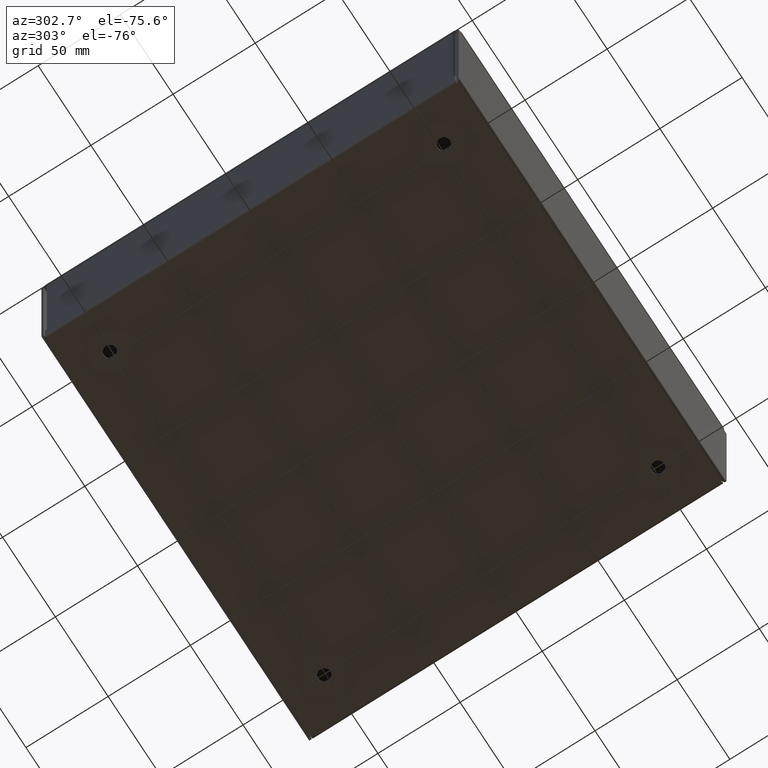
[diagram: clean part render]
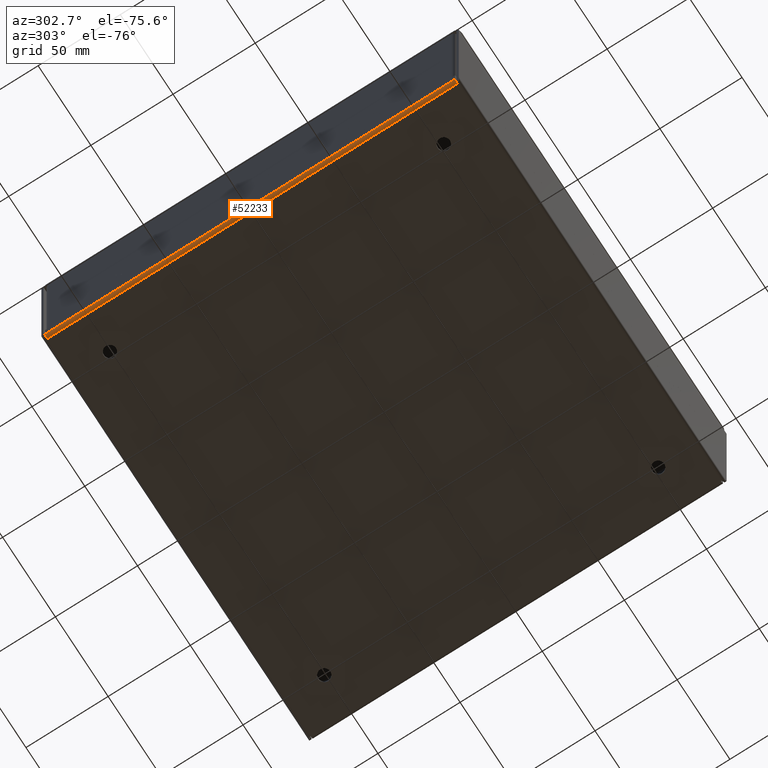
[diagram: same view with one face highlighted and labeled with its STEP entity id]
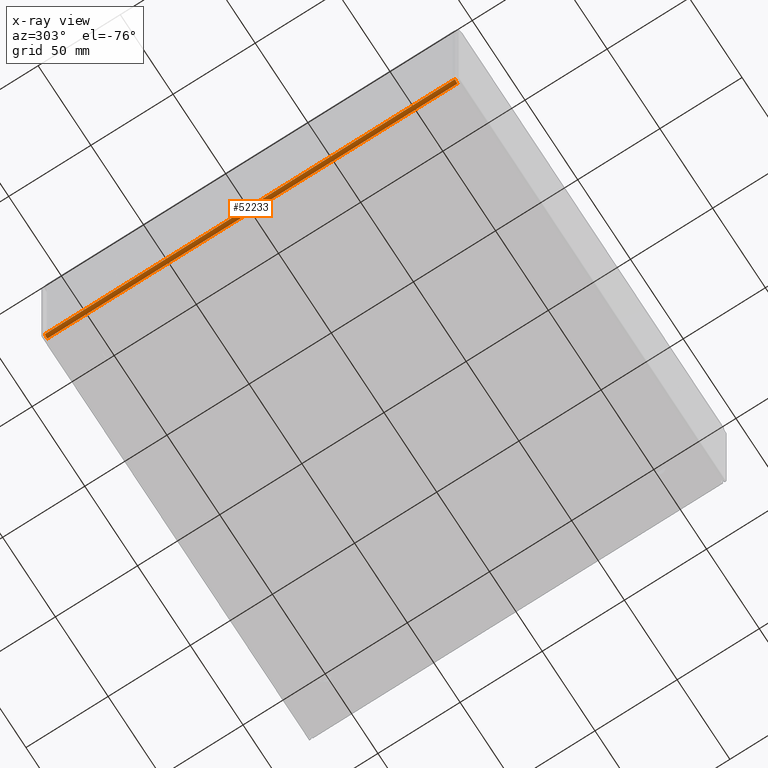
[diagram: x-ray of the same camera — body ghosted, the highlighted face saturated]
A machine part, auxiliary view. The second image highlights one B-rep face of the part: STEP entity #52233.
The next image is the same camera in x-ray: the body ghosted, the highlighted face saturated — about 0% of this face is hidden behind the body in this view.
In plain terms, the highlighted cylindrical surface (edge-blend (fillet) strip) has radius 2.1844 mm, axis along (-0, 1, 0).
Its self-contained STEP definition (entity closure, byte-faithful):
#6798=FACE_OUTER_BOUND('',#9720,.T.);
#9720=EDGE_LOOP('',(#39034,#39035,#39036,#39037));
#13265=LINE('',#71396,#18770);
#13309=LINE('',#71938,#18814);
#18770=VECTOR('',#60185,0.393700787401575);
#18814=VECTOR('',#60351,0.393700787401575);
#23688=CIRCLE('',#55575,0.086);
#23703=CIRCLE('',#55620,0.086);
#24824=VERTEX_POINT('',#71393);
#24825=VERTEX_POINT('',#71395);
#24827=VERTEX_POINT('',#71416);
#24847=VERTEX_POINT('',#71516);
#30232=EDGE_CURVE('',#24824,#24825,#13265,.T.);
#30244=EDGE_CURVE('',#24827,#24824,#23688,.T.);
#30293=EDGE_CURVE('',#24847,#24825,#23703,.T.);
#30306=EDGE_CURVE('',#24847,#24827,#13309,.T.);
#39034=ORIENTED_EDGE('',*,*,#30232,.F.);
#39035=ORIENTED_EDGE('',*,*,#30244,.F.);
#39036=ORIENTED_EDGE('',*,*,#30306,.F.);
#39037=ORIENTED_EDGE('',*,*,#30293,.T.);
#51624=CYLINDRICAL_SURFACE('',#55622,0.086);
#52233=ADVANCED_FACE('',(#6798),#51624,.T.);
#55575=AXIS2_PLACEMENT_3D('',#71418,#60218,#60219);
#55620=AXIS2_PLACEMENT_3D('',#71517,#60342,#60343);
#55622=AXIS2_PLACEMENT_3D('',#71937,#60349,#60350);
#60185=DIRECTION('',(-3.0230677808811E-32,-1.,0.));
#60218=DIRECTION('center_axis',(-1.42318495396429E-16,1.,0.));
#60219=DIRECTION('ref_axis',(-2.25597769799371E-14,0.,-1.));
#60342=DIRECTION('center_axis',(-1.42318495396429E-16,1.,0.));
#60343=DIRECTION('ref_axis',(-2.25597769799371E-14,0.,-1.));
#60349=DIRECTION('center_axis',(-1.42318495396429E-16,1.,0.));
#60350=DIRECTION('ref_axis',(-2.25597769799371E-14,0.,-1.));
#60351=DIRECTION('',(-1.42318495396429E-16,1.,0.));
#71393=CARTESIAN_POINT('',(-5.,4.914,0.086));
#71395=CARTESIAN_POINT('',(-5.,-4.914,0.086));
#71396=CARTESIAN_POINT('',(-5.,-2.457,0.0860000000000001));
#71416=CARTESIAN_POINT('',(-4.914,4.914,0.));
#71418=CARTESIAN_POINT('Origin',(-4.914,4.914,0.086));
#71516=CARTESIAN_POINT('',(-4.914,-4.914,0.));
#71517=CARTESIAN_POINT('Origin',(-4.914,-4.914,0.086));
#71937=CARTESIAN_POINT('Origin',(-4.914,0.,0.086));
#71938=CARTESIAN_POINT('',(-4.914,2.457,0.));